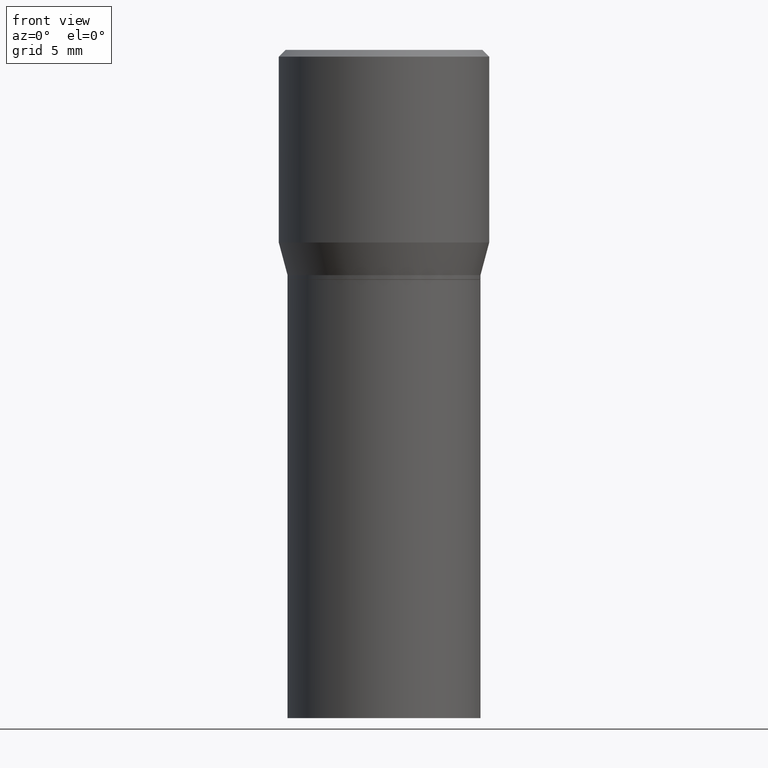
[diagram: clean part render]
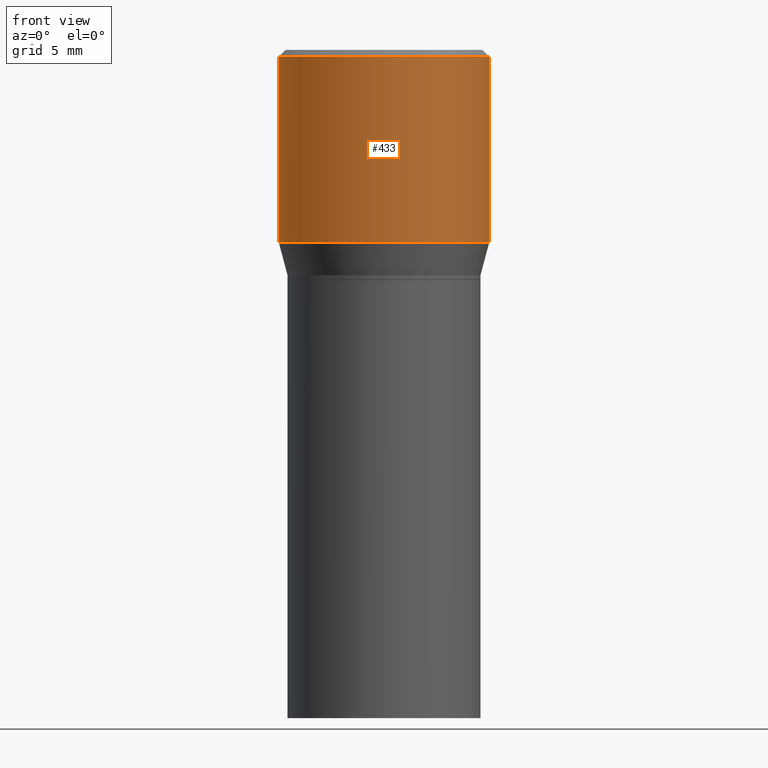
[diagram: same view with one face highlighted and labeled with its STEP entity id]
A machine part, front view. The second image highlights one B-rep face of the part: STEP entity #433.
In plain terms, the highlighted cylindrical surface (partial cylindrical patch) has radius 5.9995 mm, axis along (-0, 0, 1).
Its self-contained STEP definition (entity closure, byte-faithful):
#13 = DIRECTION ( 'NONE',  ( 1.000000000000000000, -6.982962677686266711E-15, 0.000000000000000000 ) ) ;
#14 = DIRECTION ( 'NONE',  ( -2.445468806185136597E-29, 3.491481338843145583E-15, 1.000000000000000000 ) ) ;
#21 = CARTESIAN_POINT ( 'NONE',  ( 1.057335613469222325E-29, -1.509595033060739709E-15, -0.4323652016312719004 ) ) ;
#22 = EDGE_CURVE ( 'NONE', #464, #269, #386, .T. ) ;
#47 = CARTESIAN_POINT ( 'NONE',  ( 0.2361999999999999933, -3.158970817530236235E-15, -0.4323652016312719004 ) ) ;
#52 = VECTOR ( 'NONE', #266, 39.37007874015748143 ) ;
#53 = LINE ( 'NONE', #300, #89 ) ;
#54 = FACE_OUTER_BOUND ( 'NONE', #327, .T. ) ;
#89 = VECTOR ( 'NONE', #297, 39.37007874015748143 ) ;
#108 = ORIENTED_EDGE ( 'NONE', *, *, #22, .F. ) ;
#121 = LINE ( 'NONE', #124, #52 ) ;
#124 = CARTESIAN_POINT ( 'NONE',  ( -0.2361999999999999933, 1.678301941865356591E-15, -1.161852468318208757E-29 ) ) ;
#140 = VERTEX_POINT ( 'NONE', #47 ) ;
#158 = EDGE_CURVE ( 'NONE', #140, #269, #53, .T. ) ;
#182 = ORIENTED_EDGE ( 'NONE', *, *, #449, .F. ) ;
#194 = CARTESIAN_POINT ( 'NONE',  ( 0.000000000000000000, 0.000000000000000000, 0.000000000000000000 ) ) ;
#201 = CYLINDRICAL_SURFACE ( 'NONE', #236, 0.2361999999999999933 ) ;
#232 = CARTESIAN_POINT ( 'NONE',  ( -0.2361999999999999933, 8.973183152936629998E-16, -0.01499999999999999944 ) ) ;
#236 = AXIS2_PLACEMENT_3D ( 'NONE', #194, #345, #416 ) ;
#251 = VERTEX_POINT ( 'NONE', #390 ) ;
#261 = AXIS2_PLACEMENT_3D ( 'NONE', #21, #302, #354 ) ;
#266 = DIRECTION ( 'NONE',  ( -2.445468806185136877E-29, 3.491481338843145188E-15, 1.000000000000000000 ) ) ;
#269 = VERTEX_POINT ( 'NONE', #384 ) ;
#297 = DIRECTION ( 'NONE',  ( -2.445468806185136877E-29, 3.491481338843145188E-15, 1.000000000000000000 ) ) ;
#298 = CIRCLE ( 'NONE', #261, 0.2361999999999999933 ) ;
#300 = CARTESIAN_POINT ( 'NONE',  ( 0.2361999999999999933, -1.649375784469496131E-15, 1.151752954443000088E-29 ) ) ;
#302 = DIRECTION ( 'NONE',  ( -2.445468806185136597E-29, 3.491481338843145583E-15, 1.000000000000000000 ) ) ;
#327 = EDGE_LOOP ( 'NONE', ( #182, #368, #383, #108 ) ) ;
#345 = DIRECTION ( 'NONE',  ( -2.445468806185136597E-29, 3.491481338843145583E-15, 1.000000000000000000 ) ) ;
#354 = DIRECTION ( 'NONE',  ( 1.000000000000000000, -6.982962677686268288E-15, 0.000000000000000000 ) ) ;
#366 = AXIS2_PLACEMENT_3D ( 'NONE', #443, #14, #13 ) ;
#368 = ORIENTED_EDGE ( 'NONE', *, *, #434, .T. ) ;
#383 = ORIENTED_EDGE ( 'NONE', *, *, #158, .T. ) ;
#384 = CARTESIAN_POINT ( 'NONE',  ( 0.2361999999999999933, -1.701748004552143407E-15, -0.01499999999999999944 ) ) ;
#386 = CIRCLE ( 'NONE', #366, 0.2361999999999999933 ) ;
#390 = CARTESIAN_POINT ( 'NONE',  ( -0.2361999999999999933, 1.687069088046168326E-16, -0.4323652016312719004 ) ) ;
#416 = DIRECTION ( 'NONE',  ( 1.000000000000000000, -6.982962677686266711E-15, 4.876176775795936353E-29 ) ) ;
#433 = ADVANCED_FACE ( 'NONE', ( #54 ), #201, .T. ) ;
#434 = EDGE_CURVE ( 'NONE', #251, #140, #298, .T. ) ;
#443 = CARTESIAN_POINT ( 'NONE',  ( 3.668203209277705088E-31, -5.237222008264718399E-17, -0.01499999999999999944 ) ) ;
#449 = EDGE_CURVE ( 'NONE', #251, #464, #121, .T. ) ;
#464 = VERTEX_POINT ( 'NONE', #232 ) ;